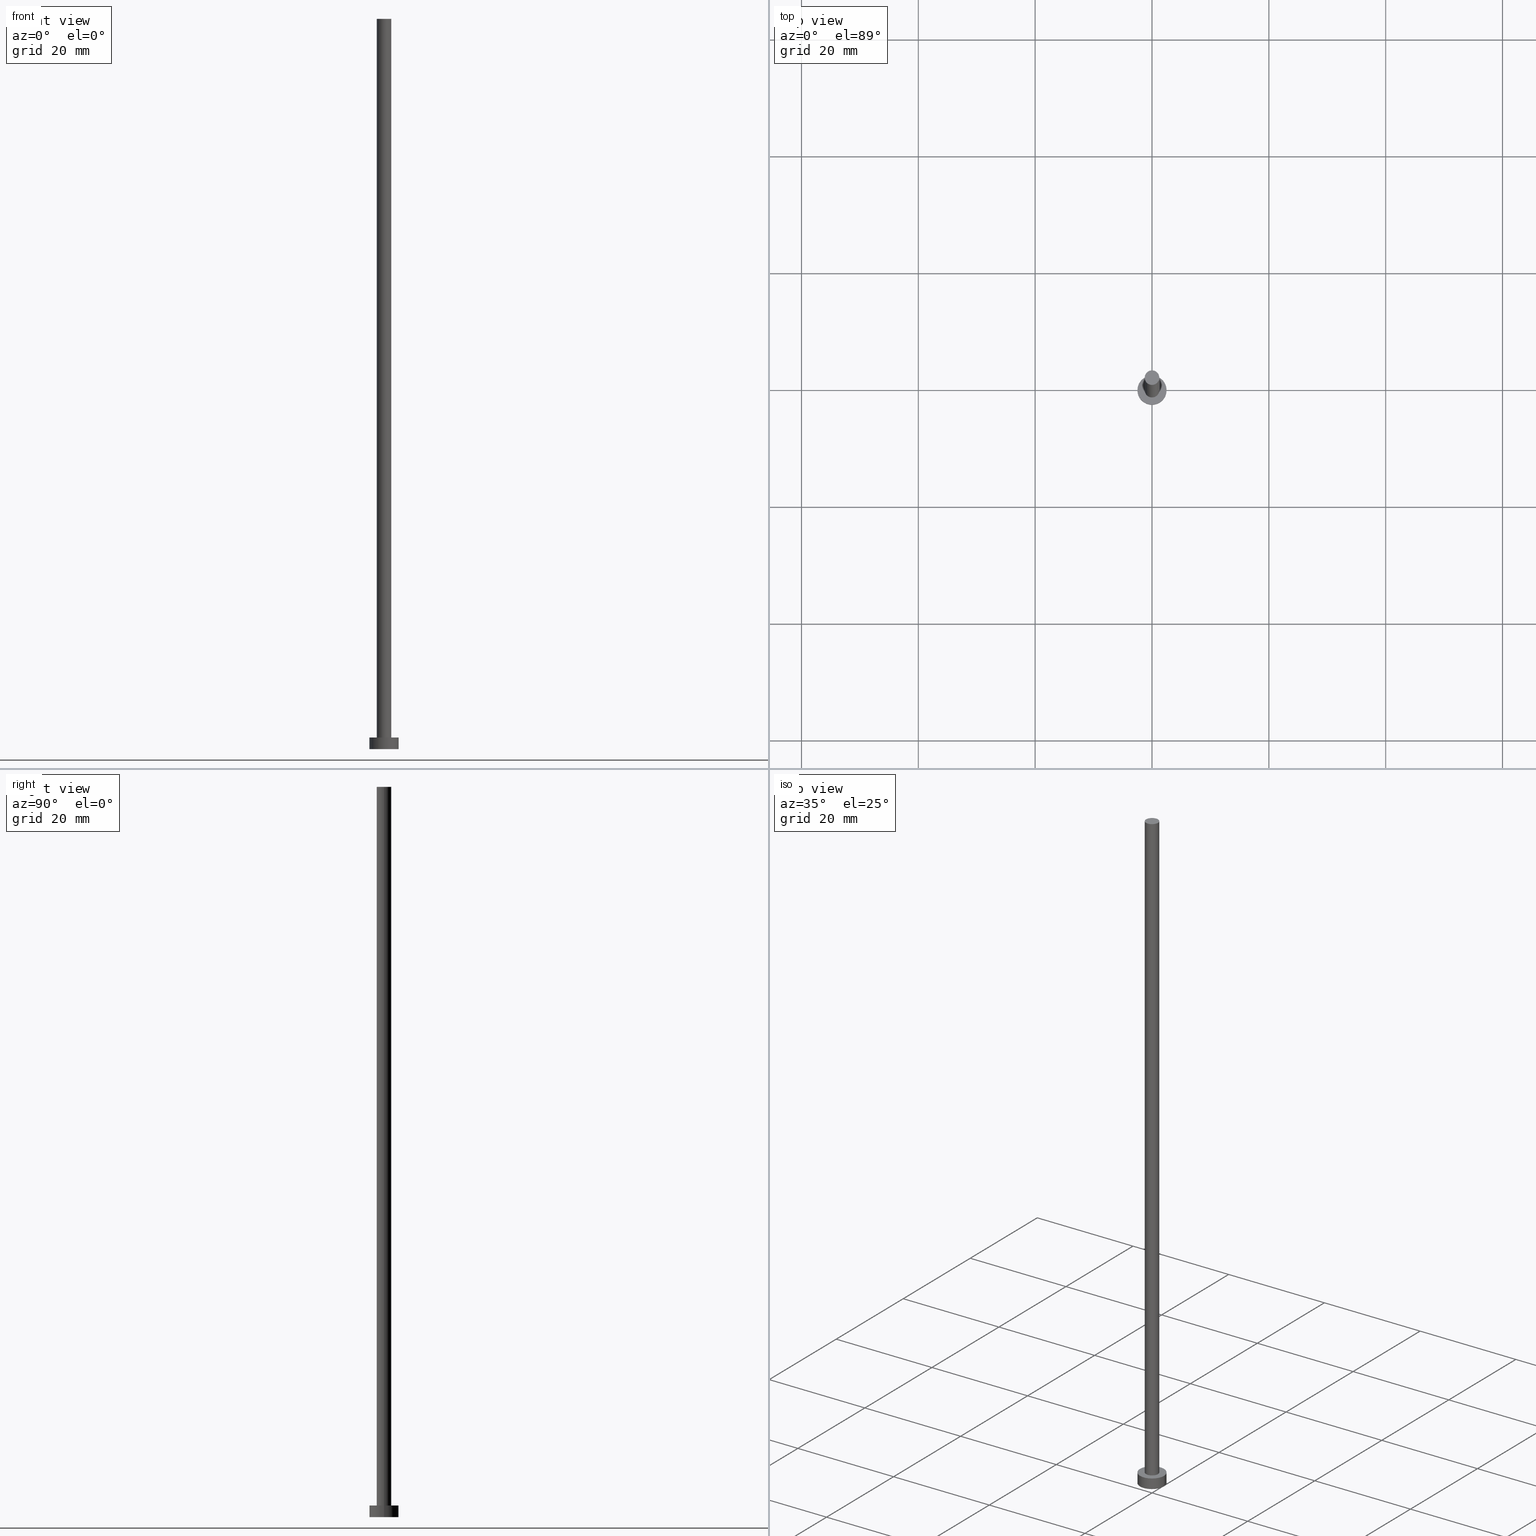
[diagram: canonical four-view strip — front | top / right | iso, engineering-drawing reading convention]
A machine part, canonical four-view strip (front | top / right | iso — engineering-drawing reading convention). The complete STEP part file that produces these views, byte-faithful:
ISO-10303-21;
HEADER;
FILE_DESCRIPTION (( 'STEP AP203' ),
    '1' );
FILE_NAME ('5658.STEP',
    '2023-02-13T15:57:45',
    ( '' ),
    ( '' ),
    'SwSTEP 2.0',
    'SolidWorks 2019',
    '' );
FILE_SCHEMA (( 'CONFIG_CONTROL_DESIGN' ));
ENDSEC;

DATA;
#1 = ORIENTED_EDGE ( 'NONE', *, *, #104, .F. ) ;
#2 = DIRECTION ( 'NONE',  ( 0.000000000000000000, 0.000000000000000000, 1.000000000000000000 ) ) ;
#3 = CARTESIAN_POINT ( 'NONE',  ( 0.000000000000000000, 0.000000000000000000, 2.000000000000000000 ) ) ;
#4 = ADVANCED_BREP_SHAPE_REPRESENTATION ( '5658', ( #252, #151 ), #188 ) ;
#5 = CC_DESIGN_PERSON_AND_ORGANIZATION_ASSIGNMENT ( #120, #212, ( #78 ) ) ;
#6 = PRODUCT_DEFINITION_FORMATION_WITH_SPECIFIED_SOURCE ( 'LIBOVOLN�', '', #227, .NOT_KNOWN. ) ;
#7 = CALENDAR_DATE ( 2023, 13, 2 ) ;
#8 = EDGE_CURVE ( 'NONE', #31, #219, #233, .T. ) ;
#9 = EDGE_LOOP ( 'NONE', ( #54, #129, #208, #251 ) ) ;
#10 = CC_DESIGN_PERSON_AND_ORGANIZATION_ASSIGNMENT ( #153, #64, ( #57 ) ) ;
#11 = LINE ( 'NONE', #73, #241 ) ;
#12 = AXIS2_PLACEMENT_3D ( 'NONE', #182, #223, #226 ) ;
#13 = DIRECTION ( 'NONE',  ( -1.000000000000000000, 0.000000000000000000, 0.000000000000000000 ) ) ;
#14 = DIRECTION ( 'NONE',  ( 1.000000000000000000, 0.000000000000000000, 0.000000000000000000 ) ) ;
#15 = CARTESIAN_POINT ( 'NONE',  ( -1.250000000000000000, 0.000000000000000000, 125.0000000000000000 ) ) ;
#16 = CIRCLE ( 'NONE', #48, 1.250000000000000000 ) ;
#17 = ORGANIZATION ( 'NEUR�EN�', 'NEUR�EN�', '' ) ;
#18 = CC_DESIGN_PERSON_AND_ORGANIZATION_ASSIGNMENT ( #125, #143, ( #227 ) ) ;
#19 = FACE_OUTER_BOUND ( 'NONE', #162, .T. ) ;
#20 = DIRECTION ( 'NONE',  ( -0.000000000000000000, -0.000000000000000000, -1.000000000000000000 ) ) ;
#21 = VERTEX_POINT ( 'NONE', #199 ) ;
#22 = APPROVAL_PERSON_ORGANIZATION ( #98, #152, #209 ) ;
#23 = DIRECTION ( 'NONE',  ( -1.000000000000000000, 0.000000000000000000, 0.000000000000000000 ) ) ;
#24 = COORDINATED_UNIVERSAL_TIME_OFFSET ( 1, 0, .AHEAD. ) ;
#25 = APPLICATION_PROTOCOL_DEFINITION ( 'international standard', 'config_control_design', 1994, #128 ) ;
#26 = PERSON_AND_ORGANIZATION ( #65, #17 ) ;
#27 = CALENDAR_DATE ( 2023, 13, 2 ) ;
#28 = APPROVAL_ROLE ( '' ) ;
#29 = DIRECTION ( 'NONE',  ( -0.000000000000000000, -0.000000000000000000, -1.000000000000000000 ) ) ;
#30 = DATE_AND_TIME ( #193, #247 ) ;
#31 = VERTEX_POINT ( 'NONE', #108 ) ;
#32 = ORIENTED_EDGE ( 'NONE', *, *, #130, .T. ) ;
#33 = DIRECTION ( 'NONE',  ( -0.000000000000000000, -0.000000000000000000, -1.000000000000000000 ) ) ;
#34 = ORIENTED_EDGE ( 'NONE', *, *, #161, .T. ) ;
#35 = CC_DESIGN_DATE_AND_TIME_ASSIGNMENT ( #46, #122, ( #78 ) ) ;
#36 = DIRECTION ( 'NONE',  ( -0.000000000000000000, -0.000000000000000000, -1.000000000000000000 ) ) ;
#37 = EDGE_CURVE ( 'NONE', #21, #190, #211, .T. ) ;
#38 = FACE_OUTER_BOUND ( 'NONE', #236, .T. ) ;
#39 = CC_DESIGN_SECURITY_CLASSIFICATION ( #78, ( #6 ) ) ;
#40 = VERTEX_POINT ( 'NONE', #178 ) ;
#41 = FACE_OUTER_BOUND ( 'NONE', #245, .T. ) ;
#42 = CARTESIAN_POINT ( 'NONE',  ( 0.000000000000000000, 0.000000000000000000, 0.000000000000000000 ) ) ;
#43 = PERSON_AND_ORGANIZATION ( #65, #17 ) ;
#44 = CLOSED_SHELL ( 'NONE', ( #96, #234, #167, #136, #171, #204, #70 ) ) ;
#45 = CALENDAR_DATE ( 2023, 13, 2 ) ;
#46 = DATE_AND_TIME ( #27, #217 ) ;
#47 = DIRECTION ( 'NONE',  ( 1.000000000000000000, 0.000000000000000000, 0.000000000000000000 ) ) ;
#48 = AXIS2_PLACEMENT_3D ( 'NONE', #207, #133, #203 ) ;
#49 = MECHANICAL_CONTEXT ( 'NONE', #94, 'mechanical' ) ;
#50 = ORIENTED_EDGE ( 'NONE', *, *, #255, .F. ) ;
#51 = CALENDAR_DATE ( 2023, 13, 2 ) ;
#52 = CIRCLE ( 'NONE', #157, 1.250000000000000000 ) ;
#53 = DIRECTION ( 'NONE',  ( 1.000000000000000000, 0.000000000000000000, 0.000000000000000000 ) ) ;
#54 = ORIENTED_EDGE ( 'NONE', *, *, #191, .F. ) ;
#55 = CARTESIAN_POINT ( 'NONE',  ( 0.000000000000000000, 0.000000000000000000, 2.000000000000000000 ) ) ;
#56 = VECTOR ( 'NONE', #20, 1000.000000000000000 ) ;
#57 = PRODUCT_DEFINITION ( 'NEZN�M�', '', #6, #206 ) ;
#58 = DIRECTION ( 'NONE',  ( 0.000000000000000000, 0.000000000000000000, 1.000000000000000000 ) ) ;
#59 = PRODUCT_RELATED_PRODUCT_CATEGORY ( 'detail', '', ( #227 ) ) ;
#60 = PLANE ( 'NONE',  #200 ) ;
#61 = DIRECTION ( 'NONE',  ( 1.000000000000000000, 0.000000000000000000, 0.000000000000000000 ) ) ;
#62 = AXIS2_PLACEMENT_3D ( 'NONE', #90, #71, #201 ) ;
#63 = CYLINDRICAL_SURFACE ( 'NONE', #221, 1.250000000000000000 ) ;
#64 = PERSON_AND_ORGANIZATION_ROLE ( 'creator' ) ;
#65 = PERSON ( 'NEUR�EN�', 'NEUR�EN�', 'NEUR�EN�', ('NEUR�EN�'), ('NEUR�EN�'), ('NEUR�EN�') ) ;
#66 = APPLICATION_PROTOCOL_DEFINITION ( 'international standard', 'config_control_design', 1994, #94 ) ;
#67 = ORIENTED_EDGE ( 'NONE', *, *, #37, .T. ) ;
#68 = VECTOR ( 'NONE', #117, 1000.000000000000000 ) ;
#69 = DATE_AND_TIME ( #7, #254 ) ;
#70 = ADVANCED_FACE ( 'NONE', ( #107 ), #177, .T. ) ;
#71 = DIRECTION ( 'NONE',  ( 0.000000000000000000, 0.000000000000000000, 1.000000000000000000 ) ) ;
#72 = CARTESIAN_POINT ( 'NONE',  ( 0.000000000000000000, 0.000000000000000000, 2.000000000000000000 ) ) ;
#73 = CARTESIAN_POINT ( 'NONE',  ( 1.250000000000000000, 1.530808498934191571E-16, 125.0000000000000000 ) ) ;
#74 = DIRECTION ( 'NONE',  ( 0.000000000000000000, 0.000000000000000000, 1.000000000000000000 ) ) ;
#75 = AXIS2_PLACEMENT_3D ( 'NONE', #55, #126, #180 ) ;
#76 = CYLINDRICAL_SURFACE ( 'NONE', #12, 2.500000000000000000 ) ;
#77 = DIRECTION ( 'NONE',  ( 0.000000000000000000, 0.000000000000000000, 1.000000000000000000 ) ) ;
#78 = SECURITY_CLASSIFICATION ( '', '', #97 ) ;
#79 = ORIENTED_EDGE ( 'NONE', *, *, #130, .F. ) ;
#80 = PERSON_AND_ORGANIZATION ( #65, #17 ) ;
#81 = PRODUCT_DEFINITION_SHAPE ( 'NONE', 'NONE',  #57 ) ;
#82 = LOCAL_TIME ( 16, 57, 45.00000000000000000, #210 ) ;
#83 = APPROVAL ( #216, 'NEUR�EN�' ) ;
#84 = FACE_BOUND ( 'NONE', #132, .T. ) ;
#85 = EDGE_CURVE ( 'NONE', #190, #40, #11, .T. ) ;
#86 = LOCAL_TIME ( 16, 57, 45.00000000000000000, #101 ) ;
#87 = CIRCLE ( 'NONE', #110, 2.500000000000000000 ) ;
#88 = ORIENTED_EDGE ( 'NONE', *, *, #8, .T. ) ;
#89 = DIRECTION ( 'NONE',  ( 0.000000000000000000, 0.000000000000000000, 1.000000000000000000 ) ) ;
#90 = CARTESIAN_POINT ( 'NONE',  ( 0.000000000000000000, 0.000000000000000000, 125.0000000000000000 ) ) ;
#91 = AXIS2_PLACEMENT_3D ( 'NONE', #225, #36, #113 ) ;
#92 = CARTESIAN_POINT ( 'NONE',  ( 0.000000000000000000, 0.000000000000000000, 0.000000000000000000 ) ) ;
#93 = AXIS2_PLACEMENT_3D ( 'NONE', #3, #159, #232 ) ;
#94 = APPLICATION_CONTEXT ( 'configuration controlled 3d designs of mechanical parts and assemblies' ) ;
#95 = CARTESIAN_POINT ( 'NONE',  ( -2.500000000000000000, 0.000000000000000000, 2.000000000000000000 ) ) ;
#96 = ADVANCED_FACE ( 'NONE', ( #166 ), #146, .T. ) ;
#97 = SECURITY_CLASSIFICATION_LEVEL ( 'unclassified' ) ;
#98 = PERSON_AND_ORGANIZATION ( #65, #17 ) ;
#99 = APPROVAL_STATUS ( 'not_yet_approved' ) ;
#100 = AXIS2_PLACEMENT_3D ( 'NONE', #92, #244, #61 ) ;
#101 = COORDINATED_UNIVERSAL_TIME_OFFSET ( 1, 0, .AHEAD. ) ;
#102 = FACE_OUTER_BOUND ( 'NONE', #158, .T. ) ;
#103 = PERSON_AND_ORGANIZATION_ROLE ( 'creator' ) ;
#104 = EDGE_CURVE ( 'NONE', #40, #215, #160, .T. ) ;
#105 = DATE_AND_TIME ( #51, #86 ) ;
#106 = AXIS2_PLACEMENT_3D ( 'NONE', #195, #220, #14 ) ;
#107 = FACE_OUTER_BOUND ( 'NONE', #173, .T. ) ;
#108 = CARTESIAN_POINT ( 'NONE',  ( 2.500000000000000000, 3.061616997868383141E-16, 2.000000000000000000 ) ) ;
#109 = CC_DESIGN_PERSON_AND_ORGANIZATION_ASSIGNMENT ( #43, #103, ( #6 ) ) ;
#110 = AXIS2_PLACEMENT_3D ( 'NONE', #170, #77, #250 ) ;
#111 = CARTESIAN_POINT ( 'NONE',  ( -2.500000000000000000, 0.000000000000000000, 0.000000000000000000 ) ) ;
#112 = ORIENTED_EDGE ( 'NONE', *, *, #8, .F. ) ;
#113 = DIRECTION ( 'NONE',  ( -1.000000000000000000, 0.000000000000000000, 0.000000000000000000 ) ) ;
#114 = EDGE_CURVE ( 'NONE', #31, #147, #213, .T. ) ;
#115 = DIRECTION ( 'NONE',  ( 0.000000000000000000, 0.000000000000000000, 1.000000000000000000 ) ) ;
#116 = APPROVAL_PERSON_ORGANIZATION ( #26, #155, #172 ) ;
#117 = DIRECTION ( 'NONE',  ( -0.000000000000000000, -0.000000000000000000, -1.000000000000000000 ) ) ;
#118 = DIRECTION ( 'NONE',  ( 1.000000000000000000, 0.000000000000000000, -0.000000000000000000 ) ) ;
#119 = ORIENTED_EDGE ( 'NONE', *, *, #224, .F. ) ;
#120 = PERSON_AND_ORGANIZATION ( #65, #17 ) ;
#121 = DATE_AND_TIME ( #45, #82 ) ;
#122 = DATE_TIME_ROLE ( 'classification_date' ) ;
#123 = DIRECTION ( 'NONE',  ( 1.000000000000000000, 0.000000000000000000, 0.000000000000000000 ) ) ;
#124 = ORIENTED_EDGE ( 'NONE', *, *, #224, .T. ) ;
#125 = PERSON_AND_ORGANIZATION ( #65, #17 ) ;
#126 = DIRECTION ( 'NONE',  ( 0.000000000000000000, 0.000000000000000000, 1.000000000000000000 ) ) ;
#127 = VERTEX_POINT ( 'NONE', #111 ) ;
#128 = APPLICATION_CONTEXT ( 'configuration controlled 3d designs of mechanical parts and assemblies' ) ;
#129 = ORIENTED_EDGE ( 'NONE', *, *, #85, .T. ) ;
#130 = EDGE_CURVE ( 'NONE', #219, #31, #141, .T. ) ;
#131 = AXIS2_PLACEMENT_3D ( 'NONE', #72, #74, #53 ) ;
#132 = EDGE_LOOP ( 'NONE', ( #184, #1 ) ) ;
#133 = DIRECTION ( 'NONE',  ( 0.000000000000000000, 0.000000000000000000, 1.000000000000000000 ) ) ;
#134 = CARTESIAN_POINT ( 'NONE',  ( 0.000000000000000000, 0.000000000000000000, 125.0000000000000000 ) ) ;
#135 = UNCERTAINTY_MEASURE_WITH_UNIT (LENGTH_MEASURE( 1.000000000000000082E-05 ), #192, 'distance_accuracy_value', 'NONE');
#136 = ADVANCED_FACE ( 'NONE', ( #84, #102 ), #174, .T. ) ;
#137 = AXIS2_PLACEMENT_3D ( 'NONE', #240, #218, #13 ) ;
#138 = APPROVAL_DATE_TIME ( #30, #152 ) ;
#139 =( NAMED_UNIT ( * ) PLANE_ANGLE_UNIT ( ) SI_UNIT ( $, .RADIAN. ) );
#140 = CARTESIAN_POINT ( 'NONE',  ( 2.500000000000000000, 3.061616997868383141E-16, 0.000000000000000000 ) ) ;
#141 = CIRCLE ( 'NONE', #229, 2.500000000000000000 ) ;
#142 = SHAPE_DEFINITION_REPRESENTATION ( #81, #4 ) ;
#143 = PERSON_AND_ORGANIZATION_ROLE ( 'design_owner' ) ;
#144 = APPROVAL_DATE_TIME ( #69, #155 ) ;
#145 = CC_DESIGN_APPROVAL ( #155, ( #78 ) ) ;
#146 = CYLINDRICAL_SURFACE ( 'NONE', #137, 1.250000000000000000 ) ;
#147 = VERTEX_POINT ( 'NONE', #140 ) ;
#148 = ORIENTED_EDGE ( 'NONE', *, *, #255, .T. ) ;
#149 = CC_DESIGN_APPROVAL ( #152, ( #6 ) ) ;
#150 = FACE_OUTER_BOUND ( 'NONE', #235, .T. ) ;
#151 = AXIS2_PLACEMENT_3D ( 'NONE', #230, #2, #123 ) ;
#152 = APPROVAL ( #249, 'NEUR�EN�' ) ;
#153 = PERSON_AND_ORGANIZATION ( #65, #17 ) ;
#154 = ORIENTED_EDGE ( 'NONE', *, *, #85, .F. ) ;
#155 = APPROVAL ( #99, 'NEUR�EN�' ) ;
#156 = APPROVAL_PERSON_ORGANIZATION ( #80, #83, #28 ) ;
#157 = AXIS2_PLACEMENT_3D ( 'NONE', #185, #115, #248 ) ;
#158 = EDGE_LOOP ( 'NONE', ( #32, #88 ) ) ;
#159 = DIRECTION ( 'NONE',  ( 0.000000000000000000, 0.000000000000000000, 1.000000000000000000 ) ) ;
#160 = CIRCLE ( 'NONE', #131, 1.250000000000000000 ) ;
#161 = EDGE_CURVE ( 'NONE', #127, #147, #194, .T. ) ;
#162 = EDGE_LOOP ( 'NONE', ( #154, #231, #186, #164 ) ) ;
#163 = EDGE_CURVE ( 'NONE', #215, #40, #16, .T. ) ;
#164 = ORIENTED_EDGE ( 'NONE', *, *, #163, .T. ) ;
#165 = CARTESIAN_POINT ( 'NONE',  ( 2.500000000000000000, 3.061616997868383141E-16, 2.000000000000000000 ) ) ;
#166 = FACE_OUTER_BOUND ( 'NONE', #9, .T. ) ;
#167 = ADVANCED_FACE ( 'NONE', ( #41 ), #76, .T. ) ;
#168 = VECTOR ( 'NONE', #33, 1000.000000000000000 ) ;
#169 = ORIENTED_EDGE ( 'NONE', *, *, #161, .F. ) ;
#170 = CARTESIAN_POINT ( 'NONE',  ( 0.000000000000000000, 0.000000000000000000, 0.000000000000000000 ) ) ;
#171 = ADVANCED_FACE ( 'NONE', ( #38 ), #60, .F. ) ;
#172 = APPROVAL_ROLE ( '' ) ;
#173 = EDGE_LOOP ( 'NONE', ( #67, #198 ) ) ;
#174 = PLANE ( 'NONE',  #93 ) ;
#175 = APPROVAL_DATE_TIME ( #105, #83 ) ;
#176 = COORDINATED_UNIVERSAL_TIME_OFFSET ( 1, 0, .AHEAD. ) ;
#177 = PLANE ( 'NONE',  #62 ) ;
#178 = CARTESIAN_POINT ( 'NONE',  ( 1.250000000000000000, 1.530808498934191571E-16, 2.000000000000000000 ) ) ;
#179 = CARTESIAN_POINT ( 'NONE',  ( 0.000000000000000000, 0.000000000000000000, 2.000000000000000000 ) ) ;
#180 = DIRECTION ( 'NONE',  ( 1.000000000000000000, 0.000000000000000000, 0.000000000000000000 ) ) ;
#181 = CC_DESIGN_APPROVAL ( #83, ( #57 ) ) ;
#182 = CARTESIAN_POINT ( 'NONE',  ( 0.000000000000000000, 0.000000000000000000, 2.000000000000000000 ) ) ;
#183 = CARTESIAN_POINT ( 'NONE',  ( -2.500000000000000000, 0.000000000000000000, 2.000000000000000000 ) ) ;
#184 = ORIENTED_EDGE ( 'NONE', *, *, #163, .F. ) ;
#185 = CARTESIAN_POINT ( 'NONE',  ( 0.000000000000000000, 0.000000000000000000, 125.0000000000000000 ) ) ;
#186 = ORIENTED_EDGE ( 'NONE', *, *, #239, .T. ) ;
#187 = DIRECTION ( 'NONE',  ( -0.000000000000000000, -0.000000000000000000, -1.000000000000000000 ) ) ;
#188 =( GEOMETRIC_REPRESENTATION_CONTEXT ( 3 ) GLOBAL_UNCERTAINTY_ASSIGNED_CONTEXT ( ( #135 ) ) GLOBAL_UNIT_ASSIGNED_CONTEXT ( ( #192, #139, #214 ) ) REPRESENTATION_CONTEXT ( 'NONE', 'WORKASPACE' ) );
#189 = DATE_TIME_ROLE ( 'creation_date' ) ;
#190 = VERTEX_POINT ( 'NONE', #202 ) ;
#191 = EDGE_CURVE ( 'NONE', #190, #21, #52, .T. ) ;
#192 =( LENGTH_UNIT ( ) NAMED_UNIT ( * ) SI_UNIT ( .MILLI., .METRE. ) );
#193 = CALENDAR_DATE ( 2023, 13, 2 ) ;
#194 = CIRCLE ( 'NONE', #100, 2.500000000000000000 ) ;
#195 = CARTESIAN_POINT ( 'NONE',  ( 0.000000000000000000, 0.000000000000000000, 125.0000000000000000 ) ) ;
#196 = CC_DESIGN_PERSON_AND_ORGANIZATION_ASSIGNMENT ( #228, #246, ( #6 ) ) ;
#197 = ORIENTED_EDGE ( 'NONE', *, *, #114, .T. ) ;
#198 = ORIENTED_EDGE ( 'NONE', *, *, #191, .T. ) ;
#199 = CARTESIAN_POINT ( 'NONE',  ( -1.250000000000000000, 0.000000000000000000, 125.0000000000000000 ) ) ;
#200 = AXIS2_PLACEMENT_3D ( 'NONE', #42, #58, #118 ) ;
#201 = DIRECTION ( 'NONE',  ( 1.000000000000000000, 0.000000000000000000, -0.000000000000000000 ) ) ;
#202 = CARTESIAN_POINT ( 'NONE',  ( 1.250000000000000000, 1.530808498934191571E-16, 125.0000000000000000 ) ) ;
#203 = DIRECTION ( 'NONE',  ( 1.000000000000000000, 0.000000000000000000, 0.000000000000000000 ) ) ;
#204 = ADVANCED_FACE ( 'NONE', ( #19 ), #63, .T. ) ;
#205 = LINE ( 'NONE', #15, #68 ) ;
#206 = DESIGN_CONTEXT ( 'detailed design', #128, 'design' ) ;
#207 = CARTESIAN_POINT ( 'NONE',  ( 0.000000000000000000, 0.000000000000000000, 2.000000000000000000 ) ) ;
#208 = ORIENTED_EDGE ( 'NONE', *, *, #104, .T. ) ;
#209 = APPROVAL_ROLE ( '' ) ;
#210 = COORDINATED_UNIVERSAL_TIME_OFFSET ( 1, 0, .AHEAD. ) ;
#211 = CIRCLE ( 'NONE', #106, 1.250000000000000000 ) ;
#212 = PERSON_AND_ORGANIZATION_ROLE ( 'classification_officer' ) ;
#213 = LINE ( 'NONE', #165, #168 ) ;
#214 =( NAMED_UNIT ( * ) SI_UNIT ( $, .STERADIAN. ) SOLID_ANGLE_UNIT ( ) );
#215 = VERTEX_POINT ( 'NONE', #243 ) ;
#216 = APPROVAL_STATUS ( 'not_yet_approved' ) ;
#217 = LOCAL_TIME ( 16, 57, 45.00000000000000000, #253 ) ;
#218 = DIRECTION ( 'NONE',  ( -0.000000000000000000, -0.000000000000000000, -1.000000000000000000 ) ) ;
#219 = VERTEX_POINT ( 'NONE', #95 ) ;
#220 = DIRECTION ( 'NONE',  ( 0.000000000000000000, 0.000000000000000000, 1.000000000000000000 ) ) ;
#221 = AXIS2_PLACEMENT_3D ( 'NONE', #134, #187, #23 ) ;
#222 = CYLINDRICAL_SURFACE ( 'NONE', #91, 2.500000000000000000 ) ;
#223 = DIRECTION ( 'NONE',  ( -0.000000000000000000, -0.000000000000000000, -1.000000000000000000 ) ) ;
#224 = EDGE_CURVE ( 'NONE', #147, #127, #87, .T. ) ;
#225 = CARTESIAN_POINT ( 'NONE',  ( 0.000000000000000000, 0.000000000000000000, 2.000000000000000000 ) ) ;
#226 = DIRECTION ( 'NONE',  ( -1.000000000000000000, 0.000000000000000000, 0.000000000000000000 ) ) ;
#227 = PRODUCT ( '5658', '5658', '', ( #49 ) ) ;
#228 = PERSON_AND_ORGANIZATION ( #65, #17 ) ;
#229 = AXIS2_PLACEMENT_3D ( 'NONE', #179, #89, #47 ) ;
#230 = CARTESIAN_POINT ( 'NONE',  ( 0.000000000000000000, 0.000000000000000000, 0.000000000000000000 ) ) ;
#231 = ORIENTED_EDGE ( 'NONE', *, *, #37, .F. ) ;
#232 = DIRECTION ( 'NONE',  ( 1.000000000000000000, 0.000000000000000000, -0.000000000000000000 ) ) ;
#233 = CIRCLE ( 'NONE', #75, 2.500000000000000000 ) ;
#234 = ADVANCED_FACE ( 'NONE', ( #150 ), #222, .T. ) ;
#235 = EDGE_LOOP ( 'NONE', ( #112, #197, #124, #50 ) ) ;
#236 = EDGE_LOOP ( 'NONE', ( #169, #119 ) ) ;
#237 = CC_DESIGN_DATE_AND_TIME_ASSIGNMENT ( #121, #189, ( #57 ) ) ;
#238 = ORIENTED_EDGE ( 'NONE', *, *, #114, .F. ) ;
#239 = EDGE_CURVE ( 'NONE', #21, #215, #205, .T. ) ;
#240 = CARTESIAN_POINT ( 'NONE',  ( 0.000000000000000000, 0.000000000000000000, 125.0000000000000000 ) ) ;
#241 = VECTOR ( 'NONE', #29, 1000.000000000000000 ) ;
#242 = LINE ( 'NONE', #183, #56 ) ;
#243 = CARTESIAN_POINT ( 'NONE',  ( -1.250000000000000000, 0.000000000000000000, 2.000000000000000000 ) ) ;
#244 = DIRECTION ( 'NONE',  ( 0.000000000000000000, 0.000000000000000000, 1.000000000000000000 ) ) ;
#245 = EDGE_LOOP ( 'NONE', ( #238, #79, #148, #34 ) ) ;
#246 = PERSON_AND_ORGANIZATION_ROLE ( 'design_supplier' ) ;
#247 = LOCAL_TIME ( 16, 57, 45.00000000000000000, #24 ) ;
#248 = DIRECTION ( 'NONE',  ( 1.000000000000000000, 0.000000000000000000, 0.000000000000000000 ) ) ;
#249 = APPROVAL_STATUS ( 'not_yet_approved' ) ;
#250 = DIRECTION ( 'NONE',  ( 1.000000000000000000, 0.000000000000000000, 0.000000000000000000 ) ) ;
#251 = ORIENTED_EDGE ( 'NONE', *, *, #239, .F. ) ;
#252 = MANIFOLD_SOLID_BREP ( 'P�idat vysunut�m3', #44 ) ;
#253 = COORDINATED_UNIVERSAL_TIME_OFFSET ( 1, 0, .AHEAD. ) ;
#254 = LOCAL_TIME ( 16, 57, 45.00000000000000000, #176 ) ;
#255 = EDGE_CURVE ( 'NONE', #219, #127, #242, .T. ) ;
ENDSEC;
END-ISO-10303-21;
